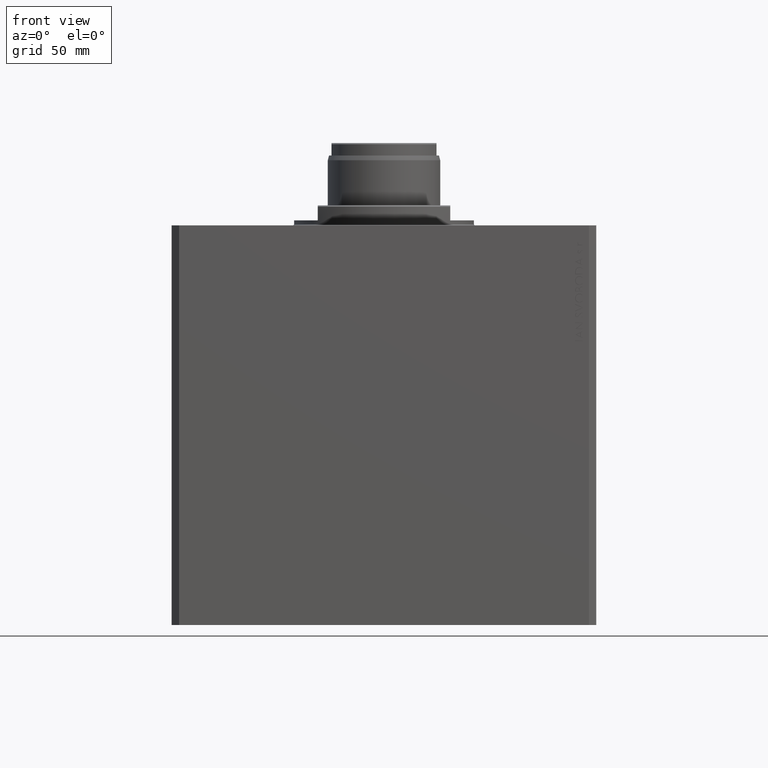
[diagram: clean part render]
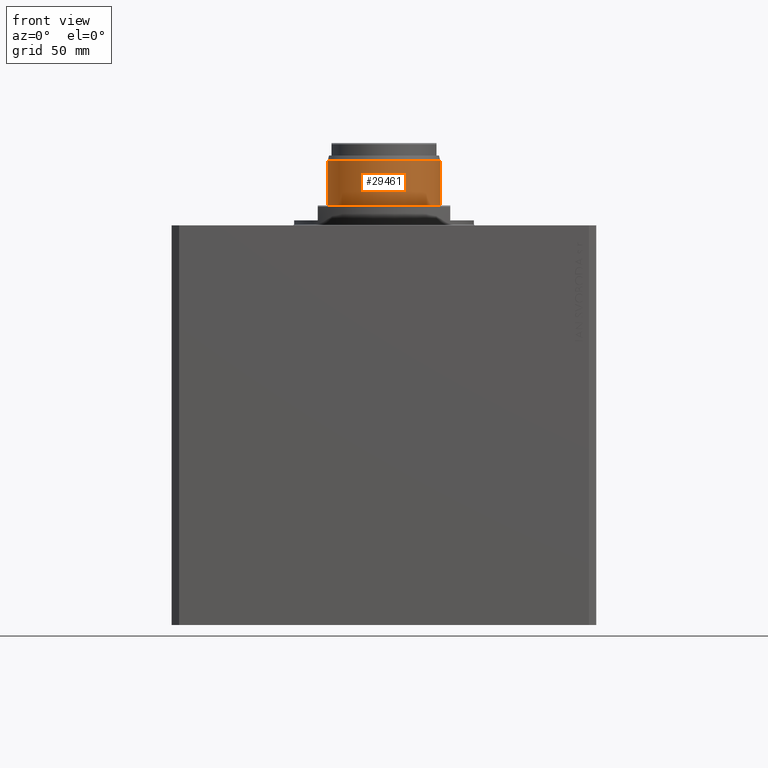
[diagram: same view with one face highlighted and labeled with its STEP entity id]
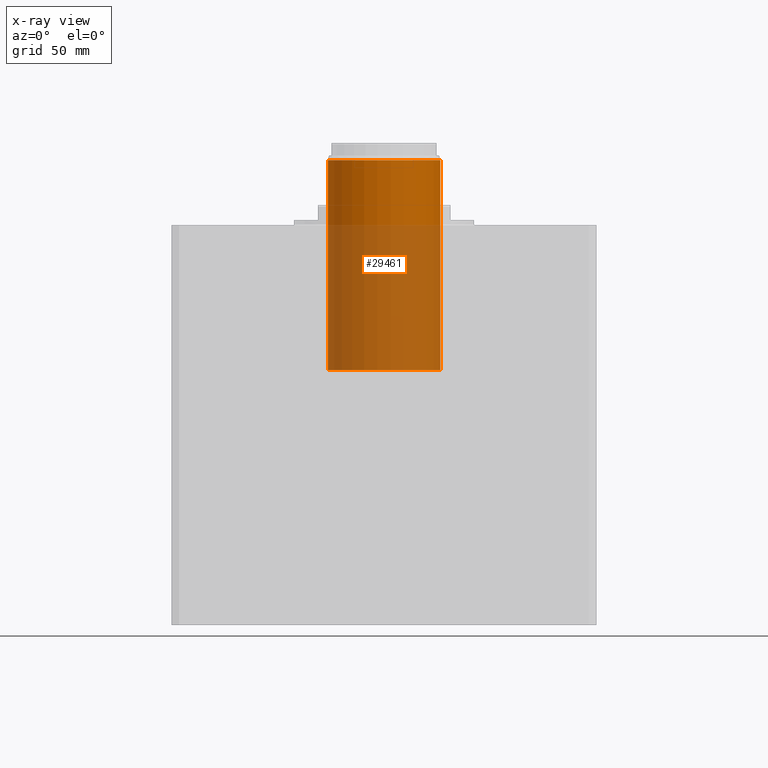
[diagram: x-ray of the same camera — body ghosted, the highlighted face saturated]
A machine part, front view. The second image highlights one B-rep face of the part: STEP entity #29461.
The next image is the same camera in x-ray: the body ghosted, the highlighted face saturated — about 69% of this face is hidden behind the body in this view.
In plain terms, the highlighted cylindrical surface (partial cylindrical patch) has radius 22.5 mm, axis along (0, -0, 1).
Its self-contained STEP definition (entity closure, byte-faithful):
#1731 = DIRECTION ( 'NONE',  ( 1.000000000000000000, -0.000000000000000000, -0.000000000000000000 ) ) ;
#3800 = EDGE_CURVE ( 'NONE', #33668, #29288, #4359, .T. ) ;
#3893 = ORIENTED_EDGE ( 'NONE', *, *, #3800, .T. ) ;
#4359 = CIRCLE ( 'NONE', #27110, 22.50000000000000000 ) ;
#5288 = FACE_OUTER_BOUND ( 'NONE', #40505, .T. ) ;
#6015 = DIRECTION ( 'NONE',  ( 1.000000000000000000, -0.000000000000000000, -0.000000000000000000 ) ) ;
#9762 = CARTESIAN_POINT ( 'NONE',  ( -6.918686402804942404, 2.755455298081544778E-15, -22.50000000000000000 ) ) ;
#11252 = EDGE_CURVE ( 'NONE', #33668, #37082, #25807, .T. ) ;
#11866 = AXIS2_PLACEMENT_3D ( 'NONE', #32499, #15991, #12434 ) ;
#12022 = ORIENTED_EDGE ( 'NONE', *, *, #42851, .F. ) ;
#12434 = DIRECTION ( 'NONE',  ( 0.000000000000000000, 0.000000000000000000, -1.000000000000000000 ) ) ;
#15991 = DIRECTION ( 'NONE',  ( 1.000000000000000000, -0.000000000000000000, -0.000000000000000000 ) ) ;
#18671 = CARTESIAN_POINT ( 'NONE',  ( 19.65248442594125322, 2.755455298081544778E-15, 22.50000000000000000 ) ) ;
#18843 = CARTESIAN_POINT ( 'NONE',  ( -91.00000000000000000, 0.000000000000000000, 0.000000000000000000 ) ) ;
#18883 = CYLINDRICAL_SURFACE ( 'NONE', #11866, 22.50000000000000000 ) ;
#19436 = VECTOR ( 'NONE', #1731, 1000.000000000000000 ) ;
#21051 = CARTESIAN_POINT ( 'NONE',  ( -6.918686402804942404, 0.000000000000000000, 0.000000000000000000 ) ) ;
#25180 = ORIENTED_EDGE ( 'NONE', *, *, #11252, .F. ) ;
#25592 = AXIS2_PLACEMENT_3D ( 'NONE', #21051, #27969, #41350 ) ;
#25757 = DIRECTION ( 'NONE',  ( 0.000000000000000000, 0.000000000000000000, -1.000000000000000000 ) ) ;
#25807 = LINE ( 'NONE', #18671, #19436 ) ;
#26827 = CARTESIAN_POINT ( 'NONE',  ( -91.00000000000000000, 2.755455298081544778E-15, 22.50000000000000000 ) ) ;
#27110 = AXIS2_PLACEMENT_3D ( 'NONE', #18843, #42266, #25757 ) ;
#27969 = DIRECTION ( 'NONE',  ( 1.000000000000000000, -0.000000000000000000, -0.000000000000000000 ) ) ;
#29288 = VERTEX_POINT ( 'NONE', #34295 ) ;
#29461 = ADVANCED_FACE ( 'NONE', ( #5288 ), #18883, .T. ) ;
#30168 = EDGE_CURVE ( 'NONE', #29288, #42443, #40106, .T. ) ;
#32499 = CARTESIAN_POINT ( 'NONE',  ( 19.65248442594125322, 0.000000000000000000, 0.000000000000000000 ) ) ;
#33668 = VERTEX_POINT ( 'NONE', #26827 ) ;
#34295 = CARTESIAN_POINT ( 'NONE',  ( -91.00000000000000000, 0.000000000000000000, -22.50000000000000000 ) ) ;
#37082 = VERTEX_POINT ( 'NONE', #41622 ) ;
#38326 = ORIENTED_EDGE ( 'NONE', *, *, #30168, .T. ) ;
#39674 = CARTESIAN_POINT ( 'NONE',  ( 19.65248442594125322, 0.000000000000000000, -22.50000000000000000 ) ) ;
#40106 = LINE ( 'NONE', #39674, #43168 ) ;
#40505 = EDGE_LOOP ( 'NONE', ( #25180, #3893, #38326, #12022 ) ) ;
#41350 = DIRECTION ( 'NONE',  ( 0.000000000000000000, 0.000000000000000000, -1.000000000000000000 ) ) ;
#41622 = CARTESIAN_POINT ( 'NONE',  ( -6.918686402804942404, 0.000000000000000000, 22.50000000000000000 ) ) ;
#41950 = CIRCLE ( 'NONE', #25592, 22.50000000000000000 ) ;
#42266 = DIRECTION ( 'NONE',  ( 1.000000000000000000, -0.000000000000000000, -0.000000000000000000 ) ) ;
#42443 = VERTEX_POINT ( 'NONE', #9762 ) ;
#42851 = EDGE_CURVE ( 'NONE', #37082, #42443, #41950, .T. ) ;
#43168 = VECTOR ( 'NONE', #6015, 1000.000000000000000 ) ;